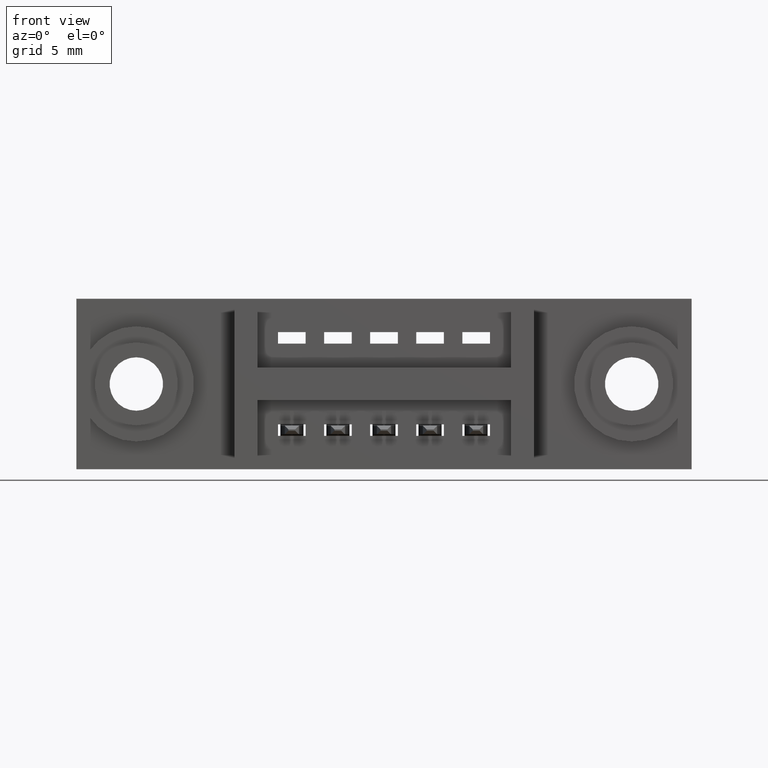
[diagram: clean part render]
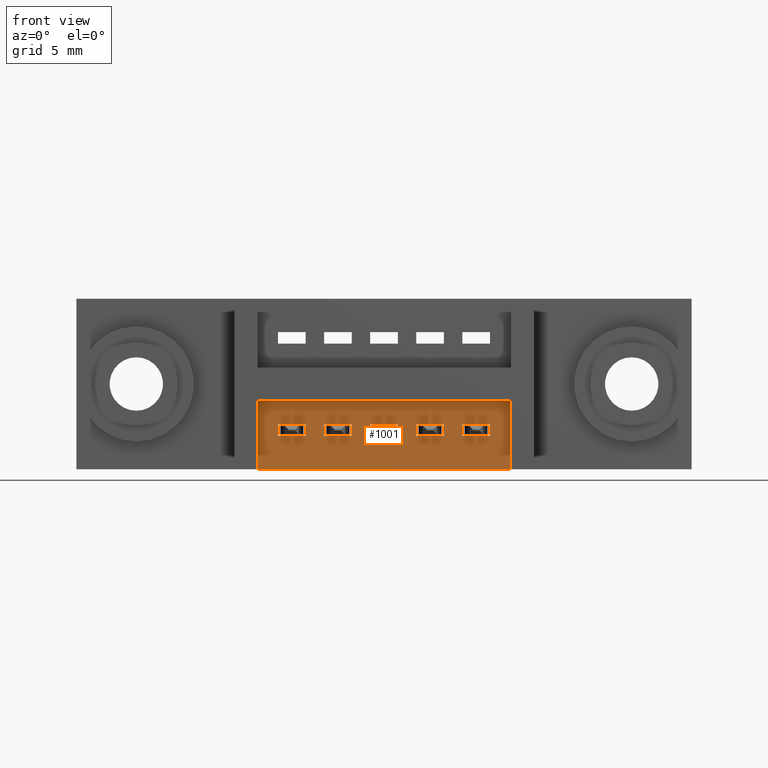
[diagram: same view with one face highlighted and labeled with its STEP entity id]
A machine part, front view. The second image highlights one B-rep face of the part: STEP entity #1001.
In plain terms, the highlighted planar face has unit normal (0, -1, 0).
Its self-contained STEP definition (entity closure, byte-faithful):
#4 = ORIENTED_EDGE ( 'NONE', *, *, #6425, .F. ) ;
#15 = DIRECTION ( 'NONE',  ( 0.0000000000000000000, 0.0000000000000000000, 1.000000000000000000 ) ) ;
#25 = LINE ( 'NONE', #962, #7040 ) ;
#44 = EDGE_CURVE ( 'NONE', #5009, #3560, #1789, .T. ) ;
#78 = LINE ( 'NONE', #5549, #4994 ) ;
#142 = ORIENTED_EDGE ( 'NONE', *, *, #4286, .F. ) ;
#197 = ORIENTED_EDGE ( 'NONE', *, *, #6733, .T. ) ;
#242 = ORIENTED_EDGE ( 'NONE', *, *, #6293, .T. ) ;
#256 = DIRECTION ( 'NONE',  ( -1.000000000000000000, 0.0000000000000000000, 0.0000000000000000000 ) ) ;
#387 = ORIENTED_EDGE ( 'NONE', *, *, #8122, .T. ) ;
#422 = EDGE_CURVE ( 'NONE', #4339, #6680, #2954, .T. ) ;
#433 = VERTEX_POINT ( 'NONE', #7817 ) ;
#471 = DIRECTION ( 'NONE',  ( -1.000000000000000000, -0.0000000000000000000, -0.0000000000000000000 ) ) ;
#570 = VERTEX_POINT ( 'NONE', #1321 ) ;
#677 = CARTESIAN_POINT ( 'NONE',  ( 0.6974999999999999000, 0.05000000000000000300, -0.3700000000000000000 ) ) ;
#713 = EDGE_CURVE ( 'NONE', #3560, #4157, #4809, .T. ) ;
#853 = VERTEX_POINT ( 'NONE', #8360 ) ;
#860 = VERTEX_POINT ( 'NONE', #2431 ) ;
#950 = VECTOR ( 'NONE', #3442, 39.37007874015748100 ) ;
#962 = CARTESIAN_POINT ( 'NONE',  ( 0.9425000000000001200, 0.05000000000000000300, -0.2975000000000001000 ) ) ;
#981 = EDGE_LOOP ( 'NONE', ( #7785, #8901, #5085, #4259 ) ) ;
#992 = EDGE_LOOP ( 'NONE', ( #5464, #5170, #5155, #2811 ) ) ;
#1001 = ADVANCED_FACE ( 'NONE', ( #6881, #6279, #6631, #8155, #4547, #8837 ), #3212, .T. ) ;
#1028 = LINE ( 'NONE', #1509, #8699 ) ;
#1098 = CARTESIAN_POINT ( 'NONE',  ( 0.9425000000000001200, 0.05000000000000000300, -0.2725000000000000200 ) ) ;
#1153 = EDGE_LOOP ( 'NONE', ( #3253, #197, #7557, #1871 ) ) ;
#1284 = LINE ( 'NONE', #4912, #8375 ) ;
#1321 = CARTESIAN_POINT ( 'NONE',  ( 0.4374999999999998900, 0.05000000000000001000, -0.2725000000000000800 ) ) ;
#1437 = VECTOR ( 'NONE', #2481, 39.37007874015748100 ) ;
#1507 = VECTOR ( 'NONE', #3912, 39.37007874015748100 ) ;
#1509 = CARTESIAN_POINT ( 'NONE',  ( 0.9425000000000001200, 0.05000000000000000300, -0.2725000000000000200 ) ) ;
#1691 = CARTESIAN_POINT ( 'NONE',  ( 0.6374999999999998400, 0.05000000000000014800, -0.2975000000000001000 ) ) ;
#1733 = ORIENTED_EDGE ( 'NONE', *, *, #6258, .T. ) ;
#1789 = LINE ( 'NONE', #8848, #7583 ) ;
#1865 = CARTESIAN_POINT ( 'NONE',  ( 0.7974999999999998800, 0.05000000000000000300, -0.2975000000000001000 ) ) ;
#1871 = ORIENTED_EDGE ( 'NONE', *, *, #8423, .F. ) ;
#1983 = VECTOR ( 'NONE', #8044, 39.37007874015748100 ) ;
#1985 = VERTEX_POINT ( 'NONE', #9517 ) ;
#2030 = VECTOR ( 'NONE', #7383, 39.37007874015748100 ) ;
#2136 = CARTESIAN_POINT ( 'NONE',  ( 0.6374999999999998400, 0.05000000000000001000, -0.2725000000000000800 ) ) ;
#2165 = CARTESIAN_POINT ( 'NONE',  ( 0.9425000000000001200, 0.05000000000000000300, -0.2725000000000000800 ) ) ;
#2192 = CARTESIAN_POINT ( 'NONE',  ( 0.5974999999999999200, 0.05000000000000000300, -0.2975000000000001000 ) ) ;
#2253 = VERTEX_POINT ( 'NONE', #4562 ) ;
#2291 = LINE ( 'NONE', #1098, #4131 ) ;
#2431 = CARTESIAN_POINT ( 'NONE',  ( 0.7974999999999998800, 0.05000000000000001000, -0.2725000000000000800 ) ) ;
#2441 = CARTESIAN_POINT ( 'NONE',  ( 0.9425000000000001200, 0.05000000000000000300, -0.2725000000000000800 ) ) ;
#2454 = DIRECTION ( 'NONE',  ( -0.0000000000000000000, -0.0000000000000000000, -1.000000000000000000 ) ) ;
#2481 = DIRECTION ( 'NONE',  ( -1.000000000000000000, 0.0000000000000000000, 0.0000000000000000000 ) ) ;
#2567 = VECTOR ( 'NONE', #4652, 39.37007874015748100 ) ;
#2598 = CARTESIAN_POINT ( 'NONE',  ( 0.9425000000000001200, 0.05000000000000000300, -0.2975000000000001000 ) ) ;
#2644 = VERTEX_POINT ( 'NONE', #7205 ) ;
#2732 = DIRECTION ( 'NONE',  ( 0.0000000000000000000, 0.0000000000000000000, 1.000000000000000000 ) ) ;
#2760 = CARTESIAN_POINT ( 'NONE',  ( 0.3924999999999996800, 0.05000000000000000300, -0.3700000000000000000 ) ) ;
#2811 = ORIENTED_EDGE ( 'NONE', *, *, #9645, .F. ) ;
#2828 = DIRECTION ( 'NONE',  ( 1.000000000000000000, 0.0000000000000000000, 0.0000000000000000000 ) ) ;
#2862 = VERTEX_POINT ( 'NONE', #1691 ) ;
#2905 = CARTESIAN_POINT ( 'NONE',  ( 0.7974999999999998800, 0.05000000000000000300, -0.3700000000000000000 ) ) ;
#2954 = LINE ( 'NONE', #2598, #950 ) ;
#2958 = EDGE_CURVE ( 'NONE', #3012, #3447, #25, .T. ) ;
#2991 = EDGE_CURVE ( 'NONE', #860, #8749, #2291, .T. ) ;
#3012 = VERTEX_POINT ( 'NONE', #9146 ) ;
#3059 = EDGE_LOOP ( 'NONE', ( #6826, #242, #4, #7300 ) ) ;
#3070 = VECTOR ( 'NONE', #7436, 39.37007874015748100 ) ;
#3212 = PLANE ( 'NONE',  #3710 ) ;
#3253 = ORIENTED_EDGE ( 'NONE', *, *, #2958, .F. ) ;
#3297 = VECTOR ( 'NONE', #4752, 39.37007874015748100 ) ;
#3442 = DIRECTION ( 'NONE',  ( 1.000000000000000000, 0.0000000000000000000, 0.0000000000000000000 ) ) ;
#3447 = VERTEX_POINT ( 'NONE', #1865 ) ;
#3560 = VERTEX_POINT ( 'NONE', #8841 ) ;
#3686 = ORIENTED_EDGE ( 'NONE', *, *, #422, .F. ) ;
#3697 = VERTEX_POINT ( 'NONE', #2136 ) ;
#3710 = AXIS2_PLACEMENT_3D ( 'NONE', #6136, #7000, #3954 ) ;
#3809 = VERTEX_POINT ( 'NONE', #5225 ) ;
#3812 = LINE ( 'NONE', #6015, #5892 ) ;
#3815 = EDGE_CURVE ( 'NONE', #4398, #5439, #4122, .T. ) ;
#3836 = CARTESIAN_POINT ( 'NONE',  ( 0.8974999999999999600, 0.05000000000000001000, -0.2725000000000000800 ) ) ;
#3912 = DIRECTION ( 'NONE',  ( 0.0000000000000000000, 0.0000000000000000000, 1.000000000000000000 ) ) ;
#3913 = EDGE_CURVE ( 'NONE', #433, #4398, #7032, .T. ) ;
#3916 = DIRECTION ( 'NONE',  ( 0.0000000000000000000, 0.0000000000000000000, 1.000000000000000000 ) ) ;
#3954 = DIRECTION ( 'NONE',  ( 0.0000000000000000000, -0.0000000000000000000, -1.000000000000000000 ) ) ;
#4015 = DIRECTION ( 'NONE',  ( -1.000000000000000000, 0.0000000000000000000, 0.0000000000000000000 ) ) ;
#4043 = DIRECTION ( 'NONE',  ( 0.0000000000000000000, 0.0000000000000000000, 1.000000000000000000 ) ) ;
#4102 = LINE ( 'NONE', #2165, #5019 ) ;
#4122 = LINE ( 'NONE', #5257, #5844 ) ;
#4131 = VECTOR ( 'NONE', #256, 39.37007874015748100 ) ;
#4157 = VERTEX_POINT ( 'NONE', #7253 ) ;
#4175 = DIRECTION ( 'NONE',  ( 0.0000000000000000000, 0.0000000000000000000, 1.000000000000000000 ) ) ;
#4251 = CARTESIAN_POINT ( 'NONE',  ( 0.4374999999999998900, 0.05000000000000014800, -0.2975000000000001000 ) ) ;
#4259 = ORIENTED_EDGE ( 'NONE', *, *, #3913, .T. ) ;
#4266 = CARTESIAN_POINT ( 'NONE',  ( 0.5374999999999999800, 0.05000000000000014800, -0.2975000000000001000 ) ) ;
#4285 = DIRECTION ( 'NONE',  ( -1.000000000000000000, 0.0000000000000000000, 0.0000000000000000000 ) ) ;
#4286 = EDGE_CURVE ( 'NONE', #4157, #570, #5396, .T. ) ;
#4337 = EDGE_LOOP ( 'NONE', ( #3686, #1733, #6334, #7692 ) ) ;
#4339 = VERTEX_POINT ( 'NONE', #4266 ) ;
#4398 = VERTEX_POINT ( 'NONE', #2760 ) ;
#4429 = CARTESIAN_POINT ( 'NONE',  ( 0.4974999999999998900, 0.05000000000000000300, -0.3700000000000000000 ) ) ;
#4433 = VECTOR ( 'NONE', #3916, 39.37007874015748100 ) ;
#4465 = VERTEX_POINT ( 'NONE', #3836 ) ;
#4518 = EDGE_LOOP ( 'NONE', ( #5808, #387, #142, #9017 ) ) ;
#4547 = FACE_BOUND ( 'NONE', #1153, .T. ) ;
#4562 = CARTESIAN_POINT ( 'NONE',  ( 0.6974999999999999000, 0.05000000000000000300, -0.2975000000000001000 ) ) ;
#4646 = CARTESIAN_POINT ( 'NONE',  ( 0.3924999999999996800, 0.05000000000000000300, -0.3700000000000000000 ) ) ;
#4652 = DIRECTION ( 'NONE',  ( 0.0000000000000000000, 0.0000000000000000000, 1.000000000000000000 ) ) ;
#4653 = VECTOR ( 'NONE', #15, 39.37007874015748100 ) ;
#4752 = DIRECTION ( 'NONE',  ( 1.000000000000000000, 0.0000000000000000000, 0.0000000000000000000 ) ) ;
#4765 = LINE ( 'NONE', #9430, #8361 ) ;
#4809 = LINE ( 'NONE', #4429, #2030 ) ;
#4912 = CARTESIAN_POINT ( 'NONE',  ( 0.8974999999999999600, 0.05000000000000000300, -0.3700000000000000000 ) ) ;
#4994 = VECTOR ( 'NONE', #4043, 39.37007874015748100 ) ;
#5009 = VERTEX_POINT ( 'NONE', #4251 ) ;
#5019 = VECTOR ( 'NONE', #4285, 39.37007874015748100 ) ;
#5085 = ORIENTED_EDGE ( 'NONE', *, *, #7230, .T. ) ;
#5118 = EDGE_CURVE ( 'NONE', #2253, #2644, #7697, .T. ) ;
#5155 = ORIENTED_EDGE ( 'NONE', *, *, #7379, .F. ) ;
#5170 = ORIENTED_EDGE ( 'NONE', *, *, #6384, .T. ) ;
#5222 = VECTOR ( 'NONE', #4015, 39.37007874015748100 ) ;
#5225 = CARTESIAN_POINT ( 'NONE',  ( 0.8374999999999999100, 0.05000000000000001000, -0.2725000000000000800 ) ) ;
#5257 = CARTESIAN_POINT ( 'NONE',  ( 0.3924999999999996800, 0.05000000000000000300, -0.3700000000000000000 ) ) ;
#5364 = LINE ( 'NONE', #6129, #4433 ) ;
#5396 = LINE ( 'NONE', #2441, #1437 ) ;
#5429 = EDGE_CURVE ( 'NONE', #6680, #7877, #5364, .T. ) ;
#5430 = CARTESIAN_POINT ( 'NONE',  ( 0.8974999999999999600, 0.05000000000000000300, -0.2975000000000001000 ) ) ;
#5439 = VERTEX_POINT ( 'NONE', #8458 ) ;
#5464 = ORIENTED_EDGE ( 'NONE', *, *, #8362, .F. ) ;
#5480 = VECTOR ( 'NONE', #8080, 39.37007874015748100 ) ;
#5512 = VECTOR ( 'NONE', #2454, 39.37007874015748100 ) ;
#5549 = CARTESIAN_POINT ( 'NONE',  ( 0.8374999999999999100, 0.05000000000000000300, -0.3700000000000000000 ) ) ;
#5808 = ORIENTED_EDGE ( 'NONE', *, *, #44, .F. ) ;
#5844 = VECTOR ( 'NONE', #7486, 39.37007874015748100 ) ;
#5891 = CARTESIAN_POINT ( 'NONE',  ( 0.7374999999999998200, 0.05000000000000000300, -0.3700000000000000000 ) ) ;
#5892 = VECTOR ( 'NONE', #6344, 39.37007874015748100 ) ;
#6015 = CARTESIAN_POINT ( 'NONE',  ( 0.9425000000000001200, 0.05000000000000000300, -0.2975000000000001000 ) ) ;
#6046 = EDGE_CURVE ( 'NONE', #5439, #1985, #6272, .T. ) ;
#6129 = CARTESIAN_POINT ( 'NONE',  ( 0.5974999999999999200, 0.05000000000000000300, -0.3700000000000000000 ) ) ;
#6136 = CARTESIAN_POINT ( 'NONE',  ( 0.9425000000000001200, 0.05000000000000000300, -0.3700000000000000000 ) ) ;
#6159 = DIRECTION ( 'NONE',  ( 1.000000000000000000, 0.0000000000000000000, 0.0000000000000000000 ) ) ;
#6258 = EDGE_CURVE ( 'NONE', #4339, #853, #9397, .T. ) ;
#6272 = LINE ( 'NONE', #8066, #4653 ) ;
#6279 = FACE_BOUND ( 'NONE', #4518, .T. ) ;
#6293 = EDGE_CURVE ( 'NONE', #2862, #3697, #8246, .T. ) ;
#6334 = ORIENTED_EDGE ( 'NONE', *, *, #9143, .F. ) ;
#6344 = DIRECTION ( 'NONE',  ( 1.000000000000000000, 0.0000000000000000000, 0.0000000000000000000 ) ) ;
#6384 = EDGE_CURVE ( 'NONE', #8493, #3809, #78, .T. ) ;
#6425 = EDGE_CURVE ( 'NONE', #2644, #3697, #7774, .T. ) ;
#6631 = FACE_BOUND ( 'NONE', #4337, .T. ) ;
#6680 = VERTEX_POINT ( 'NONE', #2192 ) ;
#6684 = CARTESIAN_POINT ( 'NONE',  ( 0.4374999999999998900, 0.05000000000000000300, -0.3700000000000000000 ) ) ;
#6733 = EDGE_CURVE ( 'NONE', #3012, #8749, #6966, .T. ) ;
#6826 = ORIENTED_EDGE ( 'NONE', *, *, #6844, .F. ) ;
#6844 = EDGE_CURVE ( 'NONE', #2862, #2253, #3812, .T. ) ;
#6846 = CARTESIAN_POINT ( 'NONE',  ( 0.7374999999999998200, 0.05000000000000001000, -0.2725000000000000800 ) ) ;
#6881 = FACE_OUTER_BOUND ( 'NONE', #981, .T. ) ;
#6966 = LINE ( 'NONE', #5891, #1983 ) ;
#7000 = DIRECTION ( 'NONE',  ( 0.0000000000000000000, -1.000000000000000000, 0.0000000000000000000 ) ) ;
#7032 = LINE ( 'NONE', #4646, #5512 ) ;
#7040 = VECTOR ( 'NONE', #6159, 39.37007874015748100 ) ;
#7167 = CARTESIAN_POINT ( 'NONE',  ( 0.9425000000000001200, 0.05000000000000000300, -0.2975000000000001000 ) ) ;
#7205 = CARTESIAN_POINT ( 'NONE',  ( 0.6974999999999999000, 0.05000000000000001000, -0.2725000000000000800 ) ) ;
#7217 = LINE ( 'NONE', #7167, #3297 ) ;
#7230 = EDGE_CURVE ( 'NONE', #1985, #433, #4765, .T. ) ;
#7253 = CARTESIAN_POINT ( 'NONE',  ( 0.4974999999999998900, 0.05000000000000001000, -0.2725000000000000800 ) ) ;
#7259 = CARTESIAN_POINT ( 'NONE',  ( 0.8374999999999999100, 0.05000000000000014800, -0.2975000000000001000 ) ) ;
#7300 = ORIENTED_EDGE ( 'NONE', *, *, #5118, .F. ) ;
#7379 = EDGE_CURVE ( 'NONE', #4465, #3809, #1028, .T. ) ;
#7383 = DIRECTION ( 'NONE',  ( 0.0000000000000000000, 0.0000000000000000000, 1.000000000000000000 ) ) ;
#7436 = DIRECTION ( 'NONE',  ( 0.0000000000000000000, 0.0000000000000000000, 1.000000000000000000 ) ) ;
#7486 = DIRECTION ( 'NONE',  ( 1.000000000000000000, 0.0000000000000000000, 0.0000000000000000000 ) ) ;
#7557 = ORIENTED_EDGE ( 'NONE', *, *, #2991, .F. ) ;
#7583 = VECTOR ( 'NONE', #2828, 39.37007874015748100 ) ;
#7663 = CARTESIAN_POINT ( 'NONE',  ( 0.5374999999999999800, 0.05000000000000000300, -0.3700000000000000000 ) ) ;
#7692 = ORIENTED_EDGE ( 'NONE', *, *, #5429, .F. ) ;
#7697 = LINE ( 'NONE', #677, #9540 ) ;
#7739 = VERTEX_POINT ( 'NONE', #5430 ) ;
#7774 = LINE ( 'NONE', #8454, #5222 ) ;
#7785 = ORIENTED_EDGE ( 'NONE', *, *, #3815, .T. ) ;
#7817 = CARTESIAN_POINT ( 'NONE',  ( 0.3924999999999996800, 0.05000000000000000300, -0.2200000000000000000 ) ) ;
#7877 = VERTEX_POINT ( 'NONE', #7898 ) ;
#7898 = CARTESIAN_POINT ( 'NONE',  ( 0.5974999999999999200, 0.05000000000000001000, -0.2725000000000000800 ) ) ;
#7922 = LINE ( 'NONE', #6684, #3070 ) ;
#8044 = DIRECTION ( 'NONE',  ( 0.0000000000000000000, 0.0000000000000000000, 1.000000000000000000 ) ) ;
#8066 = CARTESIAN_POINT ( 'NONE',  ( 0.9425000000000001200, 0.05000000000000000300, -0.3700000000000000000 ) ) ;
#8080 = DIRECTION ( 'NONE',  ( 0.0000000000000000000, 0.0000000000000000000, 1.000000000000000000 ) ) ;
#8122 = EDGE_CURVE ( 'NONE', #5009, #570, #7922, .T. ) ;
#8155 = FACE_BOUND ( 'NONE', #3059, .T. ) ;
#8246 = LINE ( 'NONE', #9029, #2567 ) ;
#8360 = CARTESIAN_POINT ( 'NONE',  ( 0.5374999999999999800, 0.05000000000000001000, -0.2725000000000000800 ) ) ;
#8361 = VECTOR ( 'NONE', #471, 39.37007874015748100 ) ;
#8362 = EDGE_CURVE ( 'NONE', #8493, #7739, #7217, .T. ) ;
#8375 = VECTOR ( 'NONE', #2732, 39.37007874015748100 ) ;
#8423 = EDGE_CURVE ( 'NONE', #3447, #860, #9425, .T. ) ;
#8454 = CARTESIAN_POINT ( 'NONE',  ( 0.9425000000000001200, 0.05000000000000000300, -0.2725000000000000200 ) ) ;
#8458 = CARTESIAN_POINT ( 'NONE',  ( 0.9425000000000001200, 0.05000000000000000300, -0.3700000000000000000 ) ) ;
#8493 = VERTEX_POINT ( 'NONE', #7259 ) ;
#8699 = VECTOR ( 'NONE', #8894, 39.37007874015748100 ) ;
#8749 = VERTEX_POINT ( 'NONE', #6846 ) ;
#8837 = FACE_BOUND ( 'NONE', #992, .T. ) ;
#8841 = CARTESIAN_POINT ( 'NONE',  ( 0.4974999999999998900, 0.05000000000000000300, -0.2975000000000001000 ) ) ;
#8848 = CARTESIAN_POINT ( 'NONE',  ( 0.9425000000000001200, 0.05000000000000000300, -0.2975000000000001000 ) ) ;
#8894 = DIRECTION ( 'NONE',  ( -1.000000000000000000, 0.0000000000000000000, 0.0000000000000000000 ) ) ;
#8901 = ORIENTED_EDGE ( 'NONE', *, *, #6046, .T. ) ;
#9017 = ORIENTED_EDGE ( 'NONE', *, *, #713, .F. ) ;
#9029 = CARTESIAN_POINT ( 'NONE',  ( 0.6374999999999998400, 0.05000000000000000300, -0.3700000000000000000 ) ) ;
#9143 = EDGE_CURVE ( 'NONE', #7877, #853, #4102, .T. ) ;
#9146 = CARTESIAN_POINT ( 'NONE',  ( 0.7374999999999998200, 0.05000000000000014800, -0.2975000000000001000 ) ) ;
#9397 = LINE ( 'NONE', #7663, #1507 ) ;
#9425 = LINE ( 'NONE', #2905, #5480 ) ;
#9430 = CARTESIAN_POINT ( 'NONE',  ( 0.3924999999999996800, 0.05000000000000000300, -0.2200000000000000000 ) ) ;
#9517 = CARTESIAN_POINT ( 'NONE',  ( 0.9425000000000001200, 0.05000000000000000300, -0.2200000000000000000 ) ) ;
#9540 = VECTOR ( 'NONE', #4175, 39.37007874015748100 ) ;
#9645 = EDGE_CURVE ( 'NONE', #7739, #4465, #1284, .T. ) ;